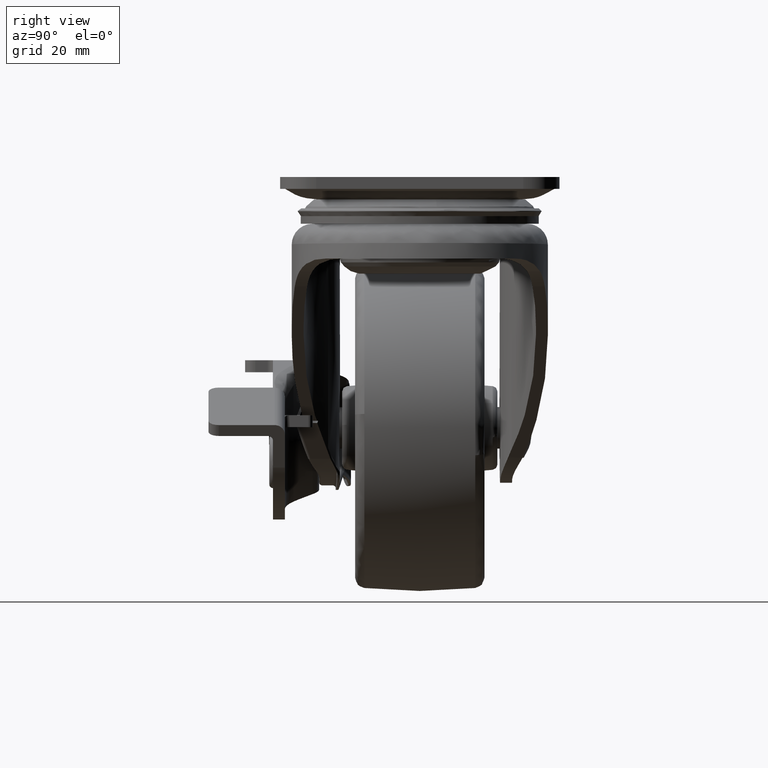
[diagram: clean part render]
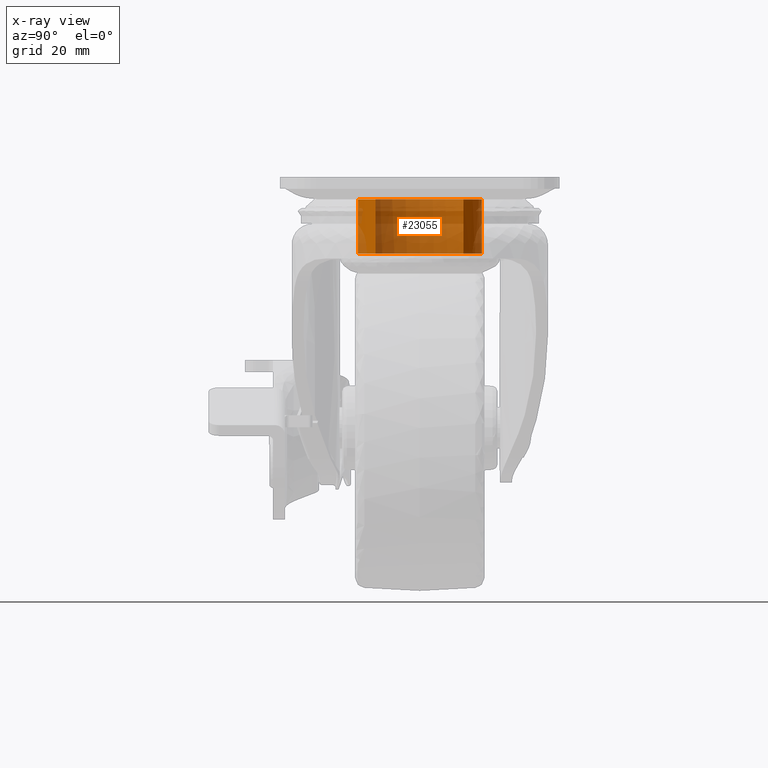
[diagram: x-ray — body ghosted, one internal face saturated and labeled with its STEP entity id]
A machine part, right view, then the same camera in x-ray: the body is ghosted and one INTERNAL B-rep face — a face not visible from any outside direction — is saturated and labeled: STEP entity #23055.
In plain terms, the highlighted face is a freeform B-spline surface patch.
Its self-contained STEP definition (entity closure, byte-faithful):
#22900=CARTESIAN_POINT('',(8.410911171598208,-8.559005389850176,-4.061858199999948));
#22901=CARTESIAN_POINT('',(-0.148094218251968,-16.969916561448382,-4.061858199999947));
#22902=CARTESIAN_POINT('',(-8.559005389850176,-8.410911171598208,-4.061858199999948));
#22903=CARTESIAN_POINT('',(-16.969916561448382,0.148094218251968,-4.061858199999947));
#22904=CARTESIAN_POINT('',(-8.410911171598208,8.559005389850176,-4.061858199999948));
#22905=CARTESIAN_POINT('',(0.148094218251968,16.969916561448382,-4.061858199999947));
#22906=CARTESIAN_POINT('',(8.559005389850176,8.410911171598208,-4.061858199999948));
#22907=CARTESIAN_POINT('',(8.410911171598208,-8.559005389850176,-15.126443945000020));
#22908=CARTESIAN_POINT('',(-0.148094218251968,-16.969916561448382,-15.126443945000025));
#22909=CARTESIAN_POINT('',(-8.559005389850176,-8.410911171598208,-15.126443945000020));
#22910=CARTESIAN_POINT('',(-16.969916561448382,0.148094218251968,-15.126443945000025));
#22911=CARTESIAN_POINT('',(-8.410911171598208,8.559005389850176,-15.126443945000020));
#22912=CARTESIAN_POINT('',(0.148094218251968,16.969916561448382,-15.126443945000025));
#22913=CARTESIAN_POINT('',(8.559005389850176,8.410911171598208,-15.126443945000020));
#22921=(BOUNDED_SURFACE()B_SPLINE_SURFACE(2,1,((#22900,#22907),(#22901,#22908),(#22902,#22909),(#22903,#22910),(#22904,#22911),(#22905,#22912),(#22906,#22913)),.UNSPECIFIED.,.F.,.F.,.U.)B_SPLINE_SURFACE_WITH_KNOTS((3,2,2,3),(2,2),(0.0,19.882250993908560,39.764501987817113,59.646752981725683),(0.0,11.064585745000080),.UNSPECIFIED.)GEOMETRIC_REPRESENTATION_ITEM()RATIONAL_B_SPLINE_SURFACE(((1.0,1.0),(0.707106781186548,0.707106781186548),(1.0,1.0),(0.707106781186548,0.707106781186548),(1.0,1.0),(0.707106781186548,0.707106781186548),(1.0,1.0)))REPRESENTATION_ITEM('')SURFACE());
#22922=CARTESIAN_POINT('',(8.410910694296881,-8.559005025045778,-14.856576000005729));
#22923=VERTEX_POINT('',#22922);
#22924=CARTESIAN_POINT('',(-0.000002379329557,-11.999999999999760,-14.856576000000020));
#22925=VERTEX_POINT('',#22924);
#22926=CARTESIAN_POINT('',(8.410910694296881,-8.559005025045778,-14.856576000005729));
#22927=CARTESIAN_POINT('',(7.545677399714436,-9.410046825988871,-14.856576000005139));
#22928=CARTESIAN_POINT('',(6.071904895492759,-10.472256226825950,-14.856576000004150));
#22929=CARTESIAN_POINT('',(3.875572609937315,-11.401776811485661,-14.856576000002660));
#22930=CARTESIAN_POINT('',(2.038740320554489,-11.880334582879961,-14.856576000001411));
#22931=CARTESIAN_POINT('',(0.728132835054737,-12.000076633749041,-14.856576000000580));
#22932=CARTESIAN_POINT('',(-0.000002379329557,-11.999999999999760,-14.856576000000020));
#22933=B_SPLINE_CURVE_WITH_KNOTS('',3,(#22926,#22927,#22928,#22929,#22930,#22931,#22932),.UNSPECIFIED.,.F.,.U.,(4,1,1,1,4),(0.000000027147452,3.640675973258097,5.388178313644426,7.135716859477698,9.320117456411520),.UNSPECIFIED.);
#22934=EDGE_CURVE('',#22923,#22925,#22933,.T.);
#22935=ORIENTED_EDGE('',*,*,#22934,.T.);
#22936=CARTESIAN_POINT('',(-12.0,0.0,-14.856576000000020));
#22937=VERTEX_POINT('',#22936);
#22938=CARTESIAN_POINT('',(-0.000002379329557,-11.999999999999760,-14.856576000000020));
#22939=CARTESIAN_POINT('',(-0.785398463637199,-12.000099219028330,-14.856576000000070));
#22940=CARTESIAN_POINT('',(-2.356157036234087,-11.845238380619699,-14.856575999999951));
#22941=CARTESIAN_POINT('',(-4.810672817295638,-11.100888818372260,-14.856576000000000));
#22942=CARTESIAN_POINT('',(-7.091435516730071,-9.808907100840816,-14.856576000000031));
#22943=CARTESIAN_POINT('',(-8.873207499649871,-8.173677067556548,-14.856576000000061));
#22944=CARTESIAN_POINT('',(-10.154716341199100,-6.489270462599143,-14.856575999999970));
#22945=CARTESIAN_POINT('',(-11.130278283830830,-4.664346096398948,-14.856576000000070));
#22946=CARTESIAN_POINT('',(-11.830349305101450,-2.454320493635922,-14.856576000000100));
#22947=CARTESIAN_POINT('',(-12.000129325812869,-0.834488060283334,-14.856575999999970));
#22948=CARTESIAN_POINT('',(-12.0,0.0,-14.856576000000020));
#22949=B_SPLINE_CURVE_WITH_KNOTS('',3,(#22938,#22939,#22940,#22941,#22942,#22943,#22944,#22945,#22946,#22947,#22948),.UNSPECIFIED.,.F.,.U.,(4,1,1,1,1,1,1,1,4),(0.000000085875900,2.356185439187758,4.712418704349171,7.657717384842576,10.161104718043950,11.928286026302860,13.989989600968441,16.346223292561561,18.849672853465250),.UNSPECIFIED.);
#22950=EDGE_CURVE('',#22925,#22937,#22949,.T.);
#22951=ORIENTED_EDGE('',*,*,#22950,.T.);
#22952=CARTESIAN_POINT('',(0.000002379329727,11.999999999999760,-14.856576000000020));
#22953=VERTEX_POINT('',#22952);
#22954=CARTESIAN_POINT('',(-12.0,0.0,-14.856576000000020));
#22955=CARTESIAN_POINT('',(-12.000281411422719,1.030868314857014,-14.856575999999990));
#22956=CARTESIAN_POINT('',(-11.789945957582550,2.650585203111935,-14.856576000000089));
#22957=CARTESIAN_POINT('',(-11.053279318716459,4.791576207102825,-14.856575999999960));
#22958=CARTESIAN_POINT('',(-10.135438188125351,6.534420445808491,-14.856576000000031));
#22959=CARTESIAN_POINT('',(-8.691316149342850,8.408869026747313,-14.856576000000040));
#22960=CARTESIAN_POINT('',(-6.912673993690199,9.905409883417688,-14.856576000000020));
#22961=CARTESIAN_POINT('',(-5.187714015915359,10.854551879216441,-14.856576000000040));
#22962=CARTESIAN_POINT('',(-3.681834016850762,11.456812859568711,-14.856575999999970));
#22963=CARTESIAN_POINT('',(-2.012555734992192,11.885832700975710,-14.856576000000089));
#22964=CARTESIAN_POINT('',(-0.687219519412559,12.000062209585570,-14.856576000000020));
#22965=CARTESIAN_POINT('',(0.000002379329727,11.999999999999760,-14.856576000000020));
#22966=B_SPLINE_CURVE_WITH_KNOTS('',3,(#22954,#22955,#22956,#22957,#22958,#22959,#22960,#22961,#22962,#22963,#22964,#22965),.UNSPECIFIED.,.F.,.U.,(4,1,1,1,1,1,1,1,1,4),(0.000000085056339,3.092523415225234,4.859684062556159,6.774126946091844,8.983097024230020,11.928287722800340,13.695466190095150,14.873579343429050,16.788011414800639,18.849675535541049),.UNSPECIFIED.);
#22967=EDGE_CURVE('',#22937,#22953,#22966,.T.);
#22968=ORIENTED_EDGE('',*,*,#22967,.T.);
#22969=CARTESIAN_POINT('',(8.559005871453575,8.410911530043990,-14.856575999994369));
#22970=VERTEX_POINT('',#22969);
#22971=CARTESIAN_POINT('',(0.000002379329727,11.999999999999760,-14.856576000000020));
#22972=CARTESIAN_POINT('',(0.843778093376243,12.000161464334351,-14.856575999999439));
#22973=CARTESIAN_POINT('',(2.084524552963469,11.868533575025049,-14.856575999998670));
#22974=CARTESIAN_POINT('',(3.957186226637501,11.369264630229191,-14.856575999997400));
#22975=CARTESIAN_POINT('',(5.519292397945036,10.714227296145721,-14.856575999996419));
#22976=CARTESIAN_POINT('',(7.165513082192772,9.685810657432660,-14.856575999995220));
#22977=CARTESIAN_POINT('',(8.106790293687293,8.871149559854544,-14.856575999994730));
#22978=CARTESIAN_POINT('',(8.559005871453575,8.410911530043990,-14.856575999994369));
#22979=B_SPLINE_CURVE_WITH_KNOTS('',3,(#22971,#22972,#22973,#22974,#22975,#22976,#22977,#22978),.UNSPECIFIED.,.F.,.U.,(4,1,1,1,1,4),(0.000000024242688,2.531289147950864,3.722491188363397,5.807065619942120,7.593870772668889,9.529556784096311),.UNSPECIFIED.);
#22980=EDGE_CURVE('',#22953,#22970,#22979,.T.);
#22981=ORIENTED_EDGE('',*,*,#22980,.T.);
#22982=CARTESIAN_POINT('',(8.559005024331725,8.410910695023452,-4.325143999999950));
#22983=VERTEX_POINT('',#22982);
#22984=CARTESIAN_POINT('',(8.559005024331725,8.410910695023452,-4.325143999999950));
#22985=CARTESIAN_POINT('',(8.559005871453575,8.410911530043990,-14.856575999994369));
#22986=QUASI_UNIFORM_CURVE('',1,(#22984,#22985),.UNSPECIFIED.,.F.,.U.);
#22987=EDGE_CURVE('',#22983,#22970,#22986,.T.);
#22988=ORIENTED_EDGE('',*,*,#22987,.F.);
#22989=CARTESIAN_POINT('',(-0.000002379329727,11.999999999999760,-4.325143999999950));
#22990=VERTEX_POINT('',#22989);
#22991=CARTESIAN_POINT('',(8.559005024331725,8.410910695023452,-4.325143999999950));
#22992=CARTESIAN_POINT('',(7.967694684721938,9.012818190863113,-4.325143999999950));
#22993=CARTESIAN_POINT('',(6.772967884964664,9.995881719396143,-4.325143999999950));
#22994=CARTESIAN_POINT('',(4.626369741210021,11.158500575293720,-4.325143999999954));
#22995=CARTESIAN_POINT('',(2.382376230470196,11.847189500767490,-4.325143999999949));
#22996=CARTESIAN_POINT('',(0.744487645703053,12.000057355070419,-4.325143999999942));
#22997=CARTESIAN_POINT('',(-0.000002379329727,11.999999999999760,-4.325143999999950));
#22998=B_SPLINE_CURVE_WITH_KNOTS('',3,(#22991,#22992,#22993,#22994,#22995,#22996,#22997),.UNSPECIFIED.,.F.,.U.,(4,1,1,1,4),(0.000000024243809,2.531290287024882,4.615893140222448,7.296070811087159,9.529561072368312),.UNSPECIFIED.);
#22999=EDGE_CURVE('',#22983,#22990,#22998,.T.);
#23000=ORIENTED_EDGE('',*,*,#22999,.T.);
#23001=CARTESIAN_POINT('',(-12.0,0.0,-4.325143999999950));
#23002=VERTEX_POINT('',#23001);
#23003=CARTESIAN_POINT('',(-0.000002379329727,11.999999999999760,-4.325143999999950));
#23004=CARTESIAN_POINT('',(-0.638136399923317,12.000047265423500,-4.325143999999946));
#23005=CARTESIAN_POINT('',(-1.865298426865425,11.901870755658340,-4.325143999999966));
#23006=CARTESIAN_POINT('',(-3.637196640369400,11.481117547074950,-4.325143999999948));
#23007=CARTESIAN_POINT('',(-5.145350883310404,10.877961062893039,-4.325143999999943));
#23008=CARTESIAN_POINT('',(-6.604763262726964,10.062995368184820,-4.325143999999944));
#23009=CARTESIAN_POINT('',(-8.061571498453564,8.968730816778848,-4.325143999999956));
#23010=CARTESIAN_POINT('',(-9.412413791726682,7.532310938330481,-4.325143999999946));
#23011=CARTESIAN_POINT('',(-10.396783149365330,6.058971936796955,-4.325143999999943));
#23012=CARTESIAN_POINT('',(-11.204751101638330,4.429218175690164,-4.325143999999984));
#23013=CARTESIAN_POINT('',(-11.830335660618520,2.454321798468820,-4.325143999999865));
#23014=CARTESIAN_POINT('',(-12.000132768511209,0.834487872175286,-4.325144000000025));
#23015=CARTESIAN_POINT('',(-12.0,0.0,-4.325143999999950));
#23016=B_SPLINE_CURVE_WITH_KNOTS('',3,(#23003,#23004,#23005,#23006,#23007,#23008,#23009,#23010,#23011,#23012,#23013,#23014,#23015),.UNSPECIFIED.,.F.,.U.,(4,1,1,1,1,1,1,1,1,1,4),(0.000000085880501,1.914402185363731,3.681563893235493,5.448742391486622,6.774125983144456,8.688568615069958,10.897433606945780,12.664623219862991,13.989989600969791,16.346223292562168,18.849672853465101),.UNSPECIFIED.);
#23017=EDGE_CURVE('',#22990,#23002,#23016,.T.);
#23018=ORIENTED_EDGE('',*,*,#23017,.T.);
#23019=CARTESIAN_POINT('',(0.000002379329557,-11.999999999999760,-4.325143999999950));
#23020=VERTEX_POINT('',#23019);
#23021=CARTESIAN_POINT('',(-12.0,0.0,-4.325143999999950));
#23022=CARTESIAN_POINT('',(-12.000043799328060,-0.638133093940128,-4.325143999999948));
#23023=CARTESIAN_POINT('',(-11.897959688530589,-1.914388909450309,-4.325143999999953));
#23024=CARTESIAN_POINT('',(-11.466114767869239,-3.684488459709010,-4.325143999999946));
#23025=CARTESIAN_POINT('',(-10.705676241187890,-5.552876831606978,-4.325143999999953));
#23026=CARTESIAN_POINT('',(-9.633619401966877,-7.269070623665704,-4.325143999999955));
#23027=CARTESIAN_POINT('',(-8.168650180786957,-8.865507729102090,-4.325143999999938));
#23028=CARTESIAN_POINT('',(-6.653862224081856,-10.047639812483791,-4.325143999999979));
#23029=CARTESIAN_POINT('',(-4.756571148682772,-11.092063362451761,-4.325143999999942));
#23030=CARTESIAN_POINT('',(-2.552511712950556,-11.820105012989250,-4.325143999999869));
#23031=CARTESIAN_POINT('',(-0.834481980527709,-12.000121446740099,-4.325144000000035));
#23032=CARTESIAN_POINT('',(0.000002379329557,-11.999999999999760,-4.325143999999950));
#23033=B_SPLINE_CURVE_WITH_KNOTS('',3,(#23021,#23022,#23023,#23024,#23025,#23026,#23027,#23028,#23029,#23030,#23031,#23032),.UNSPECIFIED.,.F.,.U.,(4,1,1,1,1,1,1,1,1,4),(0.000000085056360,1.914402457275283,3.828831404488552,5.448743166161369,7.952237840243267,9.866577697006202,11.928287722800130,13.695466190094990,16.346225618068090,18.849675535540950),.UNSPECIFIED.);
#23034=EDGE_CURVE('',#23002,#23020,#23033,.T.);
#23035=ORIENTED_EDGE('',*,*,#23034,.T.);
#23036=CARTESIAN_POINT('',(8.410911530777259,-8.559005870732928,-4.325143999999950));
#23037=VERTEX_POINT('',#23036);
#23038=CARTESIAN_POINT('',(0.000002379329557,-11.999999999999760,-4.325143999999950));
#23039=CARTESIAN_POINT('',(0.922309901361326,-12.000173143233020,-4.325143999999949));
#23040=CARTESIAN_POINT('',(2.815388130081807,-11.780711400592249,-4.325143999999956));
#23041=CARTESIAN_POINT('',(5.156474051902777,-10.921198763283900,-4.325143999999940));
#23042=CARTESIAN_POINT('',(7.027987542252439,-9.783409709074647,-4.325143999999962));
#23043=CARTESIAN_POINT('',(7.960850865265394,-9.001348193629852,-4.325143999999950));
#23044=CARTESIAN_POINT('',(8.410911530777259,-8.559005870732928,-4.325143999999950));
#23045=B_SPLINE_CURVE_WITH_KNOTS('',3,(#23038,#23039,#23040,#23041,#23042,#23043,#23044),.UNSPECIFIED.,.F.,.U.,(4,1,1,1,4),(0.000000027147816,2.766909226140620,5.679438894305282,7.426965794294205,9.320113163456766),.UNSPECIFIED.);
#23046=EDGE_CURVE('',#23020,#23037,#23045,.T.);
#23047=ORIENTED_EDGE('',*,*,#23046,.T.);
#23048=CARTESIAN_POINT('',(8.410911530777259,-8.559005870732928,-4.325143999999950));
#23049=CARTESIAN_POINT('',(8.410910694296881,-8.559005025045778,-14.856576000005729));
#23050=QUASI_UNIFORM_CURVE('',1,(#23048,#23049),.UNSPECIFIED.,.F.,.U.);
#23051=EDGE_CURVE('',#23037,#22923,#23050,.T.);
#23052=ORIENTED_EDGE('',*,*,#23051,.T.);
#23053=EDGE_LOOP('',(#22935,#22951,#22968,#22981,#22988,#23000,#23018,#23035,#23047,#23052));
#23054=FACE_OUTER_BOUND('',#23053,.T.);
#23055=ADVANCED_FACE('',(#23054),#22921,.F.);